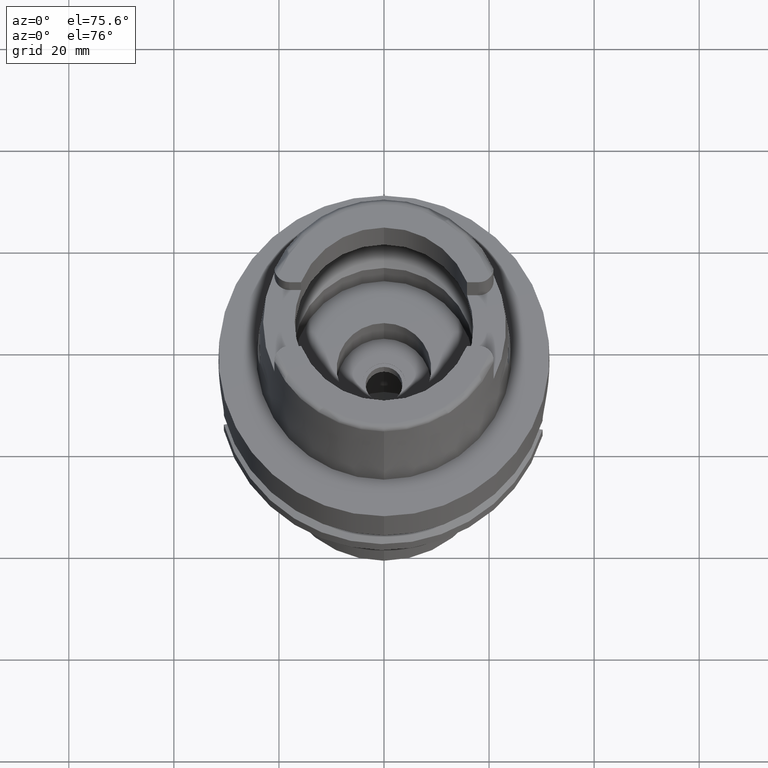
[diagram: clean part render]
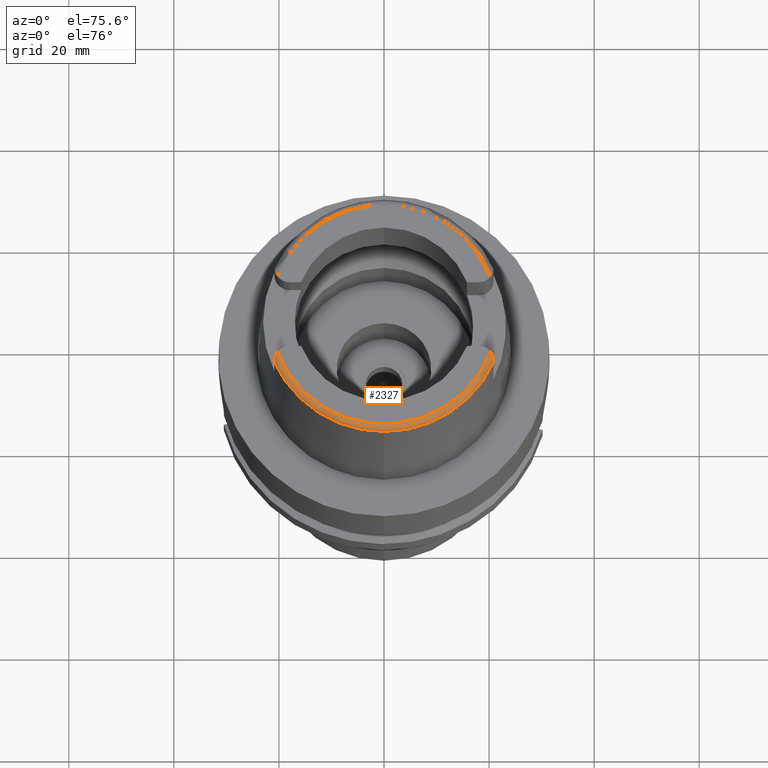
[diagram: same view with one face highlighted and labeled with its STEP entity id]
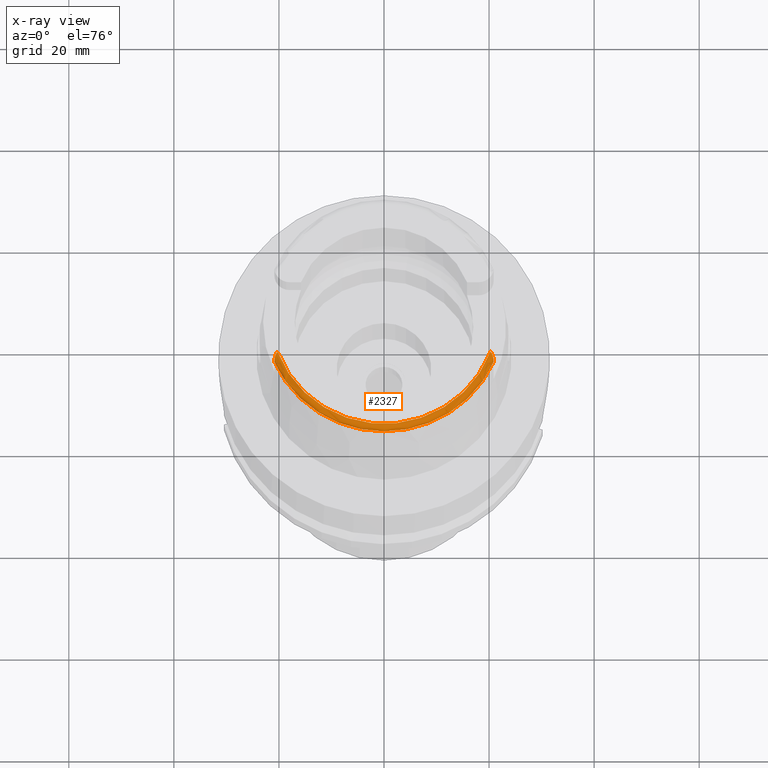
[diagram: x-ray of the same camera — body ghosted, the highlighted face saturated]
A machine part, auxiliary view. The second image highlights one B-rep face of the part: STEP entity #2327.
The next image is the same camera in x-ray: the body ghosted, the highlighted face saturated — about 0% of this face is hidden behind the body in this view.
In plain terms, the highlighted toroidal blend (fillet) surface has major radius 21.5735 mm and minor (blend) radius 1.2 mm.
Its self-contained STEP definition (entity closure, byte-faithful):
#43 = DIRECTION ( 'NONE',  ( -0.0006539142454762719193, -0.9999997861980568503, 0.0000000000000000000 ) ) ;
#74 = CARTESIAN_POINT ( 'NONE',  ( -20.86644533470521168, -9.006004409821175116, 31.13202900122168870 ) ) ;
#196 = ORIENTED_EDGE ( 'NONE', *, *, #2732, .F. ) ;
#271 = CARTESIAN_POINT ( 'NONE',  ( 20.80296749639502707, -8.460974668776206187, 31.61119788573276423 ) ) ;
#303 = CARTESIAN_POINT ( 'NONE',  ( 20.85050914440438419, -8.738866393859787252, 31.40943388878345743 ) ) ;
#314 = DIRECTION ( 'NONE',  ( -0.0006539142454761719559, -0.9999997861980568503, 0.0000000000000000000 ) ) ;
#523 = VERTEX_POINT ( 'NONE', #1377 ) ;
#558 = CARTESIAN_POINT ( 'NONE',  ( -20.80007339453474913, -8.517565466774119187, 31.59135459220909681 ) ) ;
#615 = CARTESIAN_POINT ( 'NONE',  ( -20.73719186690825467, -8.283747185365569976, 31.73225384680767291 ) ) ;
#727 = CARTESIAN_POINT ( 'NONE',  ( 20.86950538569050906, -8.954783725232902114, 31.20298635405764998 ) ) ;
#773 = CARTESIAN_POINT ( 'NONE',  ( 0.0000000000000000000, 0.0000000000000000000, 30.85992712280000205 ) ) ;
#784 = CARTESIAN_POINT ( 'NONE',  ( 20.61289115524051141, -7.897879684616821550, 31.89063307935240132 ) ) ;
#811 = CARTESIAN_POINT ( 'NONE',  ( 20.74287664877333270, -8.234459670005975340, 31.74262370851341331 ) ) ;
#934 = CIRCLE ( 'NONE', #1413, 22.77198729362000051 ) ;
#962 = CARTESIAN_POINT ( 'NONE',  ( -20.75670717805730803, -8.350048464489587374, 31.69469062292125372 ) ) ;
#987 = CARTESIAN_POINT ( 'NONE',  ( -20.86974104081999926, -9.111384060244999361, 30.85992587264000164 ) ) ;
#1014 = CARTESIAN_POINT ( 'NONE',  ( -20.80942283065892440, -8.560853703148870508, 31.56172349743271965 ) ) ;
#1053 = CARTESIAN_POINT ( 'NONE',  ( 20.87000527243999670, -9.110771420352000050, 30.85992623711999983 ) ) ;
#1164 = CARTESIAN_POINT ( 'NONE',  ( 20.82063659896098429, -8.540911114296086737, 31.56017164423433030 ) ) ;
#1174 = AXIS2_PLACEMENT_3D ( 'NONE', #4858, #1345, #43 ) ;
#1175 = DIRECTION ( 'NONE',  ( 0.0000000000000000000, 0.0000000000000000000, -1.000000000000000000 ) ) ;
#1192 = CARTESIAN_POINT ( 'NONE',  ( 20.57597161849856349, -7.820407608405361977, 31.91744845899061644 ) ) ;
#1345 = DIRECTION ( 'NONE',  ( 0.0000000000000000000, 0.0000000000000000000, 1.000000000000000000 ) ) ;
#1377 = CARTESIAN_POINT ( 'NONE',  ( -20.86974104081999926, -9.111384060244999361, 30.85992587264000164 ) ) ;
#1410 = CARTESIAN_POINT ( 'NONE',  ( -20.77540430402410010, -8.417268011962569574, 31.65514616659990210 ) ) ;
#1413 = AXIS2_PLACEMENT_3D ( 'NONE', #773, #4211, #314 ) ;
#1492 = CARTESIAN_POINT ( 'NONE',  ( -20.26871835884000106, -7.388795116668999796, 32.00000000000000000 ) ) ;
#1524 = EDGE_CURVE ( 'NONE', #1773, #5630, #5300, .T. ) ;
#1638 = ORIENTED_EDGE ( 'NONE', *, *, #5476, .F. ) ;
#1658 = EDGE_CURVE ( 'NONE', #3825, #523, #934, .T. ) ;
#1692 = CARTESIAN_POINT ( 'NONE',  ( 20.85690252486437402, -8.797869729474266265, 31.35760138415499654 ) ) ;
#1739 = TOROIDAL_SURFACE ( 'NONE', #1174, 21.57348458609000019, 1.199999999999999956 ) ;
#1773 = VERTEX_POINT ( 'NONE', #3304 ) ;
#1835 = CARTESIAN_POINT ( 'NONE',  ( -20.78397340424559658, -8.450976326051526044, 31.63415644074164845 ) ) ;
#1862 = CARTESIAN_POINT ( 'NONE',  ( -20.86555370408066068, -8.988506206893708494, 31.15806769974135548 ) ) ;
#1952 = CARTESIAN_POINT ( 'NONE',  ( -20.83384975210982404, -8.694784728409921115, 31.46078764093102720 ) ) ;
#2036 = CARTESIAN_POINT ( 'NONE',  ( 20.69660760686580403, -8.095053145052597543, 31.81216979166956449 ) ) ;
#2092 = CARTESIAN_POINT ( 'NONE',  ( 20.79483605067215279, -8.425396763314340731, 31.63354392084691824 ) ) ;
#2128 = CARTESIAN_POINT ( 'NONE',  ( 20.34556330407795244, -7.435177984187746780, 32.00000000000000000 ) ) ;
#2269 = CARTESIAN_POINT ( 'NONE',  ( -20.86790697590150145, -9.038986795398800567, 31.07700402064515544 ) ) ;
#2292 = CARTESIAN_POINT ( 'NONE',  ( -20.82952917851794439, -8.668259578371866780, 31.48194043563801259 ) ) ;
#2327 = ADVANCED_FACE ( 'NONE', ( #3574 ), #1739, .T. ) ;
#2352 = CARTESIAN_POINT ( 'NONE',  ( -20.53849867186742983, -7.784856829909871934, 31.95249881758667598 ) ) ;
#2378 = CARTESIAN_POINT ( 'NONE',  ( 0.0000000000000000000, 0.0000000000000000000, 30.85992712280000205 ) ) ;
#2458 = CARTESIAN_POINT ( 'NONE',  ( 20.78510839772614816, -8.385036675151985364, 31.65821639231491247 ) ) ;
#2487 = CARTESIAN_POINT ( 'NONE',  ( 20.40620047313992558, -7.522755336315879227, 31.99053172289499614 ) ) ;
#2546 = CARTESIAN_POINT ( 'NONE',  ( 20.79882577954955636, -8.442668593683496425, 31.62275300574014025 ) ) ;
#2710 = CARTESIAN_POINT ( 'NONE',  ( 20.87000000000000099, -9.077238550577000353, 30.98927187588999743 ) ) ;
#2732 = EDGE_CURVE ( 'NONE', #523, #5630, #5052, .T. ) ;
#2734 = CARTESIAN_POINT ( 'NONE',  ( -20.86965382315609929, -9.104875406183900566, 30.91360784241609849 ) ) ;
#2766 = CARTESIAN_POINT ( 'NONE',  ( -20.75954873659298627, -8.359973161029726541, 31.68896398087437660 ) ) ;
#2848 = CARTESIAN_POINT ( 'NONE',  ( 20.87000000000000099, -9.070000000000000284, 31.00584217417999966 ) ) ;
#2913 = DIRECTION ( 'NONE',  ( 0.9401236264118068009, -0.3408336354621024911, 0.0000000000000000000 ) ) ;
#2956 = ORIENTED_EDGE ( 'NONE', *, *, #5233, .F. ) ;
#2990 = B_SPLINE_CURVE_WITH_KNOTS ( 'NONE', 3,
 ( #4252, #2128, #2487, #5053, #3333, #1192, #5545, #4614, #784, #3017, #2036, #811, #3383, #2458, #2092, #2546, #4165, #271, #1164, #3806, #4196, #303, #1692, #5515, #727, #4706, #3750 ),
 .UNSPECIFIED., .F., .F.,
 ( 4, 2, 1, 1, 2, 2, 2, 1, 1, 1, 2, 2, 2, 2, 2, 4 ),
 ( 0.0000000000000000000, 0.1250000000000028033, 0.1875000000000046352, 0.2187500000000059397, 0.2343750000000057732, 0.2500000000000056621, 0.3749999999999995004, 0.4374999999999941713, 0.4687499999999925060, 0.4843749999999941158, 0.4921874999999953371, 0.4999999999999965583, 0.6249999999999945599, 0.6874999999999968914, 0.7499999999999991118, 1.000000000000000000 ),
 .UNSPECIFIED. ) ;
#3017 = CARTESIAN_POINT ( 'NONE',  ( 20.66029185516837074, -8.001954299831046669, 31.85236143783878049 ) ) ;
#3132 = AXIS2_PLACEMENT_3D ( 'NONE', #5063, #1175, #2913 ) ;
#3196 = CARTESIAN_POINT ( 'NONE',  ( -20.64927734283747540, -8.044174123982738678, 31.84650928287936722 ) ) ;
#3224 = DIRECTION ( 'NONE',  ( 0.0000000000000000000, 0.0000000000000000000, -1.000000000000000000 ) ) ;
#3304 = CARTESIAN_POINT ( 'NONE',  ( 20.28174256341000259, -7.352969181062000814, 32.00000000000000000 ) ) ;
#3333 = CARTESIAN_POINT ( 'NONE',  ( 20.53156853828734185, -7.733557722082696984, 31.94437387200801837 ) ) ;
#3383 = CARTESIAN_POINT ( 'NONE',  ( 20.76396201191502300, -8.304104955707668267, 31.70553601345974570 ) ) ;
#3505 = CARTESIAN_POINT ( 'NONE',  ( 20.87000070298999788, -9.089822863976998235, 30.95632974155000028 ) ) ;
#3540 = ORIENTED_EDGE ( 'NONE', *, *, #1524, .T. ) ;
#3554 = CARTESIAN_POINT ( 'NONE',  ( -20.82461378461980672, -8.640633078831497116, 31.50299645364949086 ) ) ;
#3574 = FACE_OUTER_BOUND ( 'NONE', #3676, .T. ) ;
#3587 = CARTESIAN_POINT ( 'NONE',  ( -20.84613173490400584, -8.778724737023621216, 31.38989121845926888 ) ) ;
#3665 = CARTESIAN_POINT ( 'NONE',  ( -20.76600510874743577, -8.382967897109041999, 31.67551909484619799 ) ) ;
#3673 = CARTESIAN_POINT ( 'NONE',  ( 0.0000000000000000000, -22.77198729362000051, 30.85992712280000205 ) ) ;
#3676 = EDGE_LOOP ( 'NONE', ( #5180, #1638, #3859, #2956, #3540, #196 ) ) ;
#3750 = CARTESIAN_POINT ( 'NONE',  ( 20.87000000000000099, -9.070000000000000284, 31.00584217417999966 ) ) ;
#3806 = CARTESIAN_POINT ( 'NONE',  ( 20.83290103890689693, -8.611049771612004022, 31.51087767743759116 ) ) ;
#3825 = VERTEX_POINT ( 'NONE', #3673 ) ;
#3859 = ORIENTED_EDGE ( 'NONE', *, *, #5301, .F. ) ;
#3972 = CARTESIAN_POINT ( 'NONE',  ( -20.82119716936584197, -8.621972958540855103, 31.51701229305817975 ) ) ;
#3995 = CARTESIAN_POINT ( 'NONE',  ( -20.41202647890274591, -7.574212978747661751, 32.00000000000000711 ) ) ;
#4026 = CARTESIAN_POINT ( 'NONE',  ( -20.84178373297163489, -8.746343011191150651, 31.41835301592315588 ) ) ;
#4049 = CARTESIAN_POINT ( 'NONE',  ( -20.81960337609140765, -8.613474476298652149, 31.52331396760223825 ) ) ;
#4077 = CARTESIAN_POINT ( 'NONE',  ( -20.71121057105835561, -8.203938194672211637, 31.77420342927219465 ) ) ;
#4165 = CARTESIAN_POINT ( 'NONE',  ( 20.80144597844245524, -8.454177220837095774, 31.61551084038824300 ) ) ;
#4196 = CARTESIAN_POINT ( 'NONE',  ( 20.84668557067883299, -8.707948059918878769, 31.43503282386870268 ) ) ;
#4211 = DIRECTION ( 'NONE',  ( 0.0000000000000000000, 0.0000000000000000000, -1.000000000000000000 ) ) ;
#4252 = CARTESIAN_POINT ( 'NONE',  ( 20.28174256341000259, -7.352969181062000814, 32.00000000000000000 ) ) ;
#4318 = CARTESIAN_POINT ( 'NONE',  ( 20.87000527243999670, -9.110771420352000050, 30.85992623711999983 ) ) ;
#4372 = CARTESIAN_POINT ( 'NONE',  ( 20.87000000000000099, -9.070000000000000284, 31.00584217417999966 ) ) ;
#4403 = CARTESIAN_POINT ( 'NONE',  ( -20.86840075038542253, -9.053277286795578860, 31.04960344792358740 ) ) ;
#4452 = CARTESIAN_POINT ( 'NONE',  ( -20.86946664365710902, -9.089530996848960598, 30.96773748245900748 ) ) ;
#4508 = CARTESIAN_POINT ( 'NONE',  ( -20.64423997907040942, -8.032117907302517068, 31.85155880495833713 ) ) ;
#4614 = CARTESIAN_POINT ( 'NONE',  ( 20.60634828886055914, -7.883772590242558387, 31.89570101001503488 ) ) ;
#4706 = CARTESIAN_POINT ( 'NONE',  ( 20.86999999999999744, -9.027414355938811141, 31.10332810283777150 ) ) ;
#4735 = B_SPLINE_CURVE_WITH_KNOTS ( 'NONE', 3,
 ( #4372, #2710, #3505, #5235, #4785, #4318 ),
 .UNSPECIFIED., .F., .F.,
 ( 4, 1, 1, 4 ),
 ( 0.0000000000000000000, 0.3333333333333000081, 0.6666666666667000474, 1.000000000000000000 ),
 .UNSPECIFIED. ) ;
#4785 = CARTESIAN_POINT ( 'NONE',  ( 20.87000527243999670, -9.108814702814999720, 30.87558288778999938 ) ) ;
#4846 = CARTESIAN_POINT ( 'NONE',  ( -20.66018919479222404, -8.070788937133761110, 31.83513132722382011 ) ) ;
#4858 = CARTESIAN_POINT ( 'NONE',  ( 0.0000000000000000000, 0.0000000000000000000, 30.80000000000000071 ) ) ;
#4901 = CARTESIAN_POINT ( 'NONE',  ( -20.85698411903717187, -8.869754940660078191, 31.30398968369176060 ) ) ;
#4933 = CARTESIAN_POINT ( 'NONE',  ( -20.86132370218025400, -8.922277365303317609, 31.24603380401228847 ) ) ;
#4937 = VERTEX_POINT ( 'NONE', #2848 ) ;
#4939 = VERTEX_POINT ( 'NONE', #1053 ) ;
#5052 = B_SPLINE_CURVE_WITH_KNOTS ( 'NONE', 3,
 ( #987, #2734, #4452, #4403, #2269, #74, #1862, #4933, #4901, #3587, #4026, #1952, #2292, #3554, #3972, #4049, #1014, #558, #1835, #1410, #3665, #2766, #962, #615, #4077, #5405, #4846, #3196, #4508, #2352, #3995, #1492 ),
 .UNSPECIFIED., .F., .F.,
 ( 4, 2, 2, 2, 2, 2, 1, 2, 2, 2, 1, 2, 2, 1, 1, 2, 2, 4 ),
 ( 0.0000000000000000000, 0.1249999999999840405, 0.1874999999999760747, 0.2499999999999680811, 0.3749999999999519273, 0.4374999999999447109, 0.4687499999999383271, 0.4843749999999382716, 0.4999999999999382716, 0.5624999999999408251, 0.5937499999999408251, 0.6093749999999420464, 0.6249999999999432676, 0.6874999999999509281, 0.7187499999999538147, 0.7343749999999572564, 0.7499999999999606981, 1.000000000000000000 ),
 .UNSPECIFIED. ) ;
#5053 = CARTESIAN_POINT ( 'NONE',  ( 20.49083392731083109, -7.661982680724292116, 31.96212689157992060 ) ) ;
#5063 = CARTESIAN_POINT ( 'NONE',  ( 0.0000000000000000000, 0.0000000000000000000, 32.00000000000000000 ) ) ;
#5180 = ORIENTED_EDGE ( 'NONE', *, *, #1658, .F. ) ;
#5233 = EDGE_CURVE ( 'NONE', #1773, #4937, #2990, .T. ) ;
#5235 = CARTESIAN_POINT ( 'NONE',  ( 20.86999753952999725, -9.103345126955000310, 30.90729035041000117 ) ) ;
#5299 = AXIS2_PLACEMENT_3D ( 'NONE', #2378, #3224, #5435 ) ;
#5300 = CIRCLE ( 'NONE', #3132, 21.57348458609000375 ) ;
#5301 = EDGE_CURVE ( 'NONE', #4937, #4939, #4735, .T. ) ;
#5395 = CIRCLE ( 'NONE', #5299, 22.77198729362001117 ) ;
#5405 = CARTESIAN_POINT ( 'NONE',  ( -20.67621243276164122, -8.110722809162172808, 31.81767360796561306 ) ) ;
#5435 = DIRECTION ( 'NONE',  ( 0.9164775804687985694, -0.4000860463675992573, 0.0000000000000000000 ) ) ;
#5476 = EDGE_CURVE ( 'NONE', #4939, #3825, #5395, .T. ) ;
#5488 = CARTESIAN_POINT ( 'NONE',  ( -20.26871835884000106, -7.388795116668999796, 32.00000000000000000 ) ) ;
#5515 = CARTESIAN_POINT ( 'NONE',  ( 20.85955781595730940, -8.827051927180814772, 31.33027457128516957 ) ) ;
#5545 = CARTESIAN_POINT ( 'NONE',  ( 20.59429445510671641, -7.858333538475533508, 31.90457751980098422 ) ) ;
#5630 = VERTEX_POINT ( 'NONE', #5488 ) ;